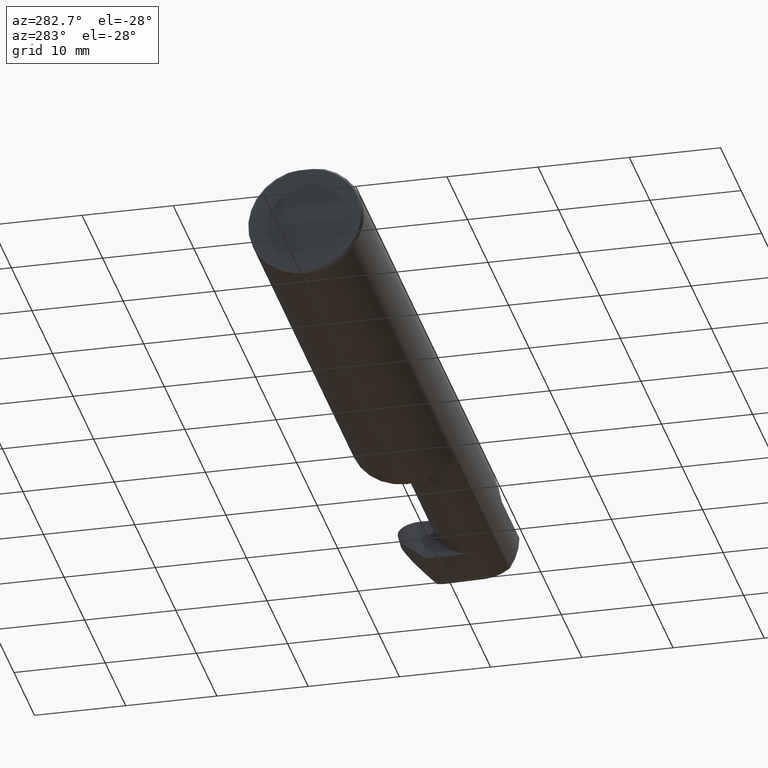
[diagram: clean part render]
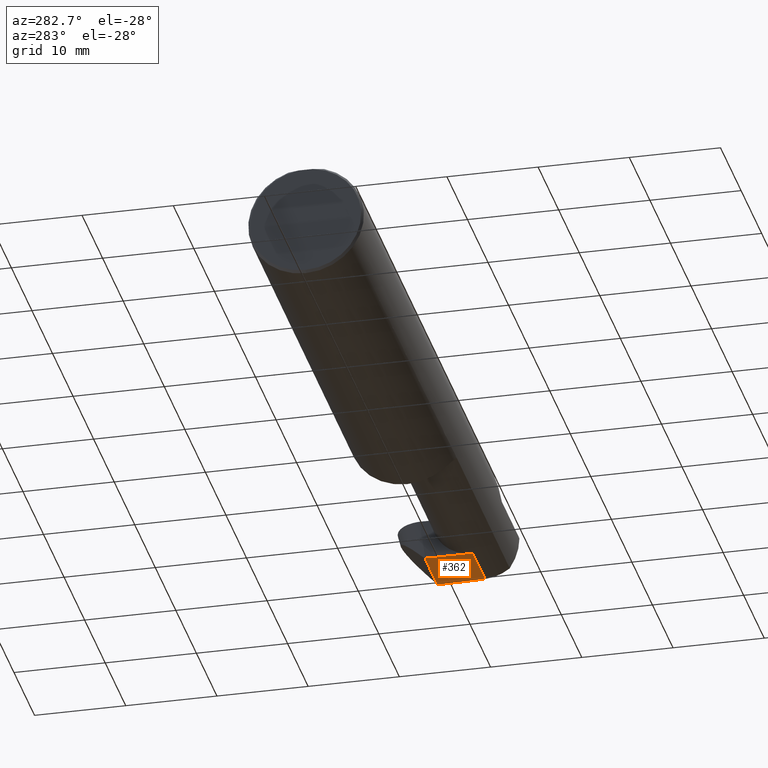
[diagram: same view with one face highlighted and labeled with its STEP entity id]
A machine part, auxiliary view. The second image highlights one B-rep face of the part: STEP entity #362.
In plain terms, the highlighted planar face has unit normal (-0, 0, 1).
Its self-contained STEP definition (entity closure, byte-faithful):
#9 = CARTESIAN_POINT ( 'NONE',  ( 3.402190948718818664, -0.1008500000000000091, -0.1750000000000000722 ) ) ;
#41 = EDGE_LOOP ( 'NONE', ( #366, #374, #206, #141, #227, #688, #557 ) ) ;
#46 = LINE ( 'NONE', #289, #606 ) ;
#50 = DIRECTION ( 'NONE',  ( -0.000000000000000000, 1.223176342469858371E-16, 1.000000000000000000 ) ) ;
#58 = DIRECTION ( 'NONE',  ( -0.0003154085283454350426, 0.9999999502587288980, -1.223178646569383192E-16 ) ) ;
#59 = AXIS2_PLACEMENT_3D ( 'NONE', #395, #50, #338 ) ;
#63 = DIRECTION ( 'NONE',  ( -0.03489949670249542502, -0.9993908270190959842, 1.222058880457094394E-16 ) ) ;
#87 = CARTESIAN_POINT ( 'NONE',  ( 2.752599177285632415, 0.1041970330334761191, -0.1750000000000001277 ) ) ;
#96 = CARTESIAN_POINT ( 'NONE',  ( 2.753013396079577735, 0.1058243371481696476, -0.1750000000000001277 ) ) ;
#104 = DIRECTION ( 'NONE',  ( 1.000000000000000000, -0.000000000000000000, -0.000000000000000000 ) ) ;
#106 = EDGE_CURVE ( 'NONE', #411, #261, #236, .T. ) ;
#135 = VECTOR ( 'NONE', #581, 39.37007874015748143 ) ;
#141 = ORIENTED_EDGE ( 'NONE', *, *, #742, .T. ) ;
#159 = DIRECTION ( 'NONE',  ( -0.03489949670249486297, 0.9993908270190959842, -1.222058880457094394E-16 ) ) ;
#191 = CARTESIAN_POINT ( 'NONE',  ( 2.753531167726741113, 0.07109536363756174815, -0.1750000000000001277 ) ) ;
#201 = EDGE_CURVE ( 'NONE', #711, #379, #589, .T. ) ;
#206 = ORIENTED_EDGE ( 'NONE', *, *, #719, .T. ) ;
#208 = CARTESIAN_POINT ( 'NONE',  ( 2.752802398054977839, 0.1050117459796568314, -0.1750000000000001277 ) ) ;
#217 = EDGE_CURVE ( 'NONE', #272, #235, #543, .T. ) ;
#227 = ORIENTED_EDGE ( 'NONE', *, *, #201, .T. ) ;
#235 = VERTEX_POINT ( 'NONE', #539 ) ;
#236 = LINE ( 'NONE', #418, #605 ) ;
#261 = VERTEX_POINT ( 'NONE', #191 ) ;
#272 = VERTEX_POINT ( 'NONE', #611 ) ;
#289 = CARTESIAN_POINT ( 'NONE',  ( 2.760318370161228163, -0.1232646843588794394, -0.1750000000000000722 ) ) ;
#304 = CARTESIAN_POINT ( 'NONE',  ( 2.995099234303557623, 0.06653939388036607394, -0.1750000000000001277 ) ) ;
#307 = CARTESIAN_POINT ( 'NONE',  ( 2.752403753671178954, 0.1033802780873585708, -0.1750000000000001277 ) ) ;
#329 = VECTOR ( 'NONE', #63, 39.37007874015748854 ) ;
#335 = LINE ( 'NONE', #694, #715 ) ;
#338 = DIRECTION ( 'NONE',  ( 0.000000000000000000, -1.000000000000000000, 1.223176342469858371E-16 ) ) ;
#362 = ADVANCED_FACE ( 'NONE', ( #571 ), #734, .F. ) ;
#366 = ORIENTED_EDGE ( 'NONE', *, *, #585, .T. ) ;
#369 = CARTESIAN_POINT ( 'NONE',  ( 2.990641147540828104, 0.1058243371481696476, -0.1750000000000001277 ) ) ;
#374 = ORIENTED_EDGE ( 'NONE', *, *, #217, .T. ) ;
#379 = VERTEX_POINT ( 'NONE', #511 ) ;
#388 =( BOUNDED_CURVE ( )  B_SPLINE_CURVE ( 3, ( #369, #547, #540, #304 ),
 .UNSPECIFIED., .F., .T. ) 
 B_SPLINE_CURVE_WITH_KNOTS ( ( 4, 4 ),
 ( 4.339337998362998050, 4.645220385064936508 ),
 .UNSPECIFIED. ) 
 CURVE ( )  GEOMETRIC_REPRESENTATION_ITEM ( )  RATIONAL_B_SPLINE_CURVE ( ( 1.000000000000000000, 0.9922181835937360361, 0.9922181835937360361, 1.000000000000000000 ) ) 
 REPRESENTATION_ITEM ( '' )  );
#395 = CARTESIAN_POINT ( 'NONE',  ( 3.402190948718818664, -0.1008500000000000091, -0.1750000000000000722 ) ) ;
#411 = VERTEX_POINT ( 'NONE', #459 ) ;
#415 = LINE ( 'NONE', #9, #135 ) ;
#418 = CARTESIAN_POINT ( 'NONE',  ( 2.753585465288466594, -0.1010545757111814130, -0.1750000000000000722 ) ) ;
#459 = CARTESIAN_POINT ( 'NONE',  ( 2.753585400763539415, -0.1008500000000000091, -0.1750000000000000444 ) ) ;
#469 = VERTEX_POINT ( 'NONE', #610 ) ;
#511 = CARTESIAN_POINT ( 'NONE',  ( 2.989253867864499092, -0.1008500000000000091, -0.1750000000000000722 ) ) ;
#527 = CARTESIAN_POINT ( 'NONE',  ( 2.989756814851906697, -0.08644748268070724662, -0.1750000000000000722 ) ) ;
#539 = CARTESIAN_POINT ( 'NONE',  ( 2.753013396079577735, 0.1058243371481696476, -0.1750000000000001277 ) ) ;
#540 = CARTESIAN_POINT ( 'NONE',  ( 2.995563461189592047, 0.07983311256960280711, -0.1750000000000001277 ) ) ;
#543 =( BOUNDED_CURVE ( )  B_SPLINE_CURVE ( 3, ( #307, #87, #208, #96 ),
 .UNSPECIFIED., .F., .T. ) 
 B_SPLINE_CURVE_WITH_KNOTS ( ( 4, 4 ),
 ( 4.955210089620395664, 4.975001206325426750 ),
 .UNSPECIFIED. ) 
 CURVE ( )  GEOMETRIC_REPRESENTATION_ITEM ( )  RATIONAL_B_SPLINE_CURVE ( ( 1.000000000000000000, 0.9999673595746501054, 0.9999673595746501054, 1.000000000000000000 ) ) 
 REPRESENTATION_ITEM ( '' )  );
#547 = CARTESIAN_POINT ( 'NONE',  ( 2.994065777569717479, 0.09303079560524193936, -0.1750000000000001277 ) ) ;
#557 = ORIENTED_EDGE ( 'NONE', *, *, #106, .T. ) ;
#571 = FACE_OUTER_BOUND ( 'NONE', #41, .T. ) ;
#581 = DIRECTION ( 'NONE',  ( -1.000000000000000000, -0.000000000000000000, -0.000000000000000000 ) ) ;
#585 = EDGE_CURVE ( 'NONE', #261, #272, #46, .T. ) ;
#589 = LINE ( 'NONE', #527, #329 ) ;
#605 = VECTOR ( 'NONE', #58, 39.37007874015748854 ) ;
#606 = VECTOR ( 'NONE', #159, 39.37007874015748854 ) ;
#610 = CARTESIAN_POINT ( 'NONE',  ( 2.990641147540828104, 0.1058243371481696476, -0.1750000000000001277 ) ) ;
#611 = CARTESIAN_POINT ( 'NONE',  ( 2.752403753671178954, 0.1033802780873585708, -0.1750000000000001277 ) ) ;
#622 = CARTESIAN_POINT ( 'NONE',  ( 2.995099234303557623, 0.06653939388036607394, -0.1750000000000001277 ) ) ;
#653 = EDGE_CURVE ( 'NONE', #379, #411, #415, .T. ) ;
#688 = ORIENTED_EDGE ( 'NONE', *, *, #653, .T. ) ;
#694 = CARTESIAN_POINT ( 'NONE',  ( -0.002039370078740339320, 0.1058243371481696476, -0.1750000000000001277 ) ) ;
#711 = VERTEX_POINT ( 'NONE', #622 ) ;
#715 = VECTOR ( 'NONE', #104, 39.37007874015748143 ) ;
#719 = EDGE_CURVE ( 'NONE', #235, #469, #335, .T. ) ;
#734 = PLANE ( 'NONE',  #59 ) ;
#742 = EDGE_CURVE ( 'NONE', #469, #711, #388, .T. ) ;